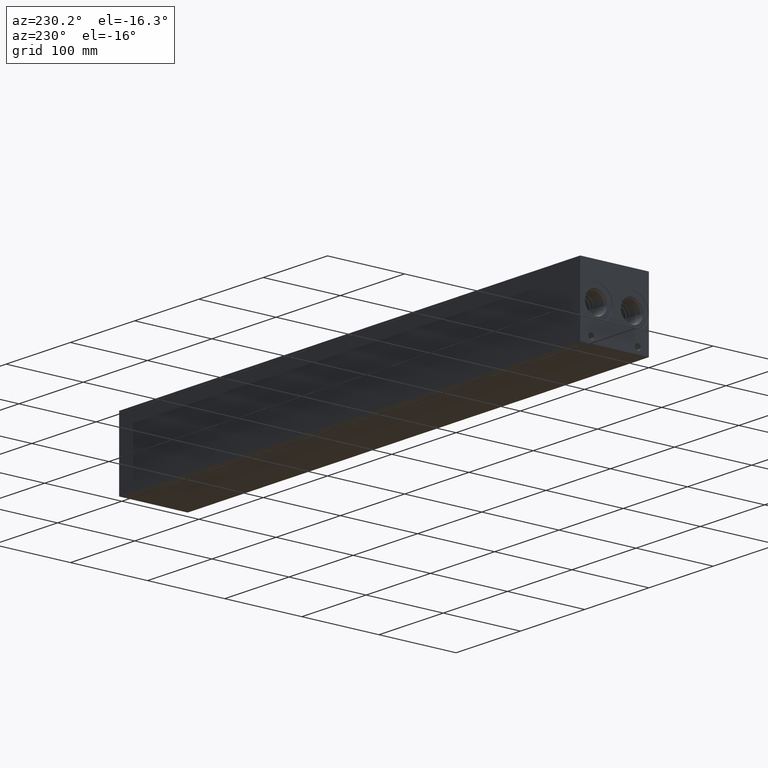
[diagram: clean part render]
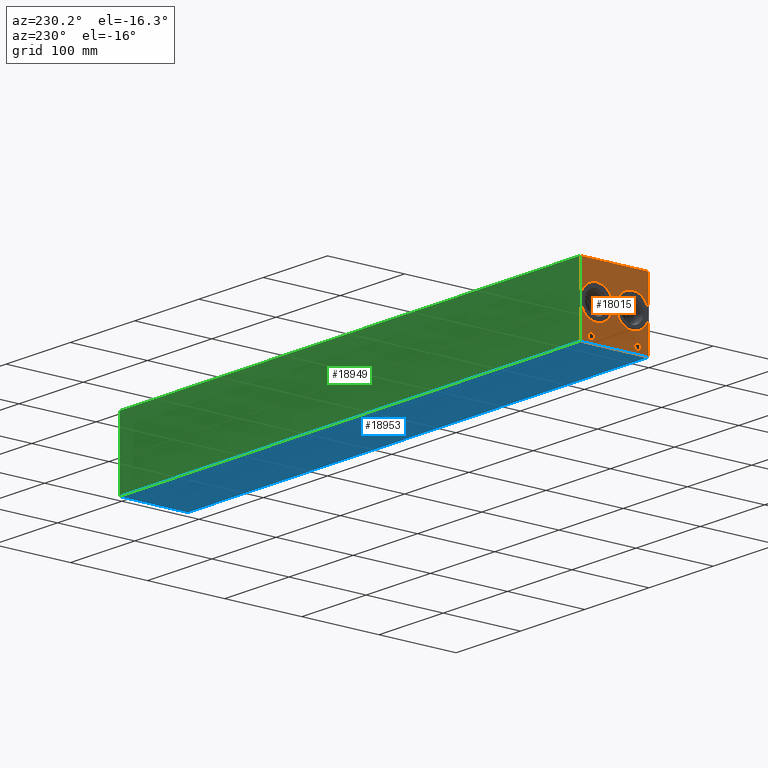
[diagram: same view with three faces highlighted in distinct colors, each labeled with its STEP entity id]
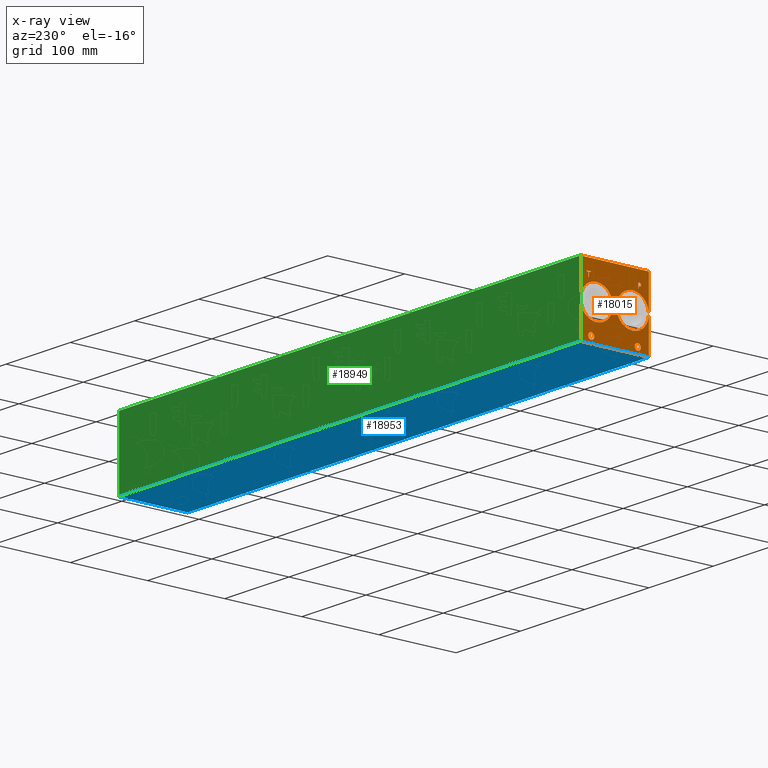
[diagram: x-ray of the same camera — body ghosted, the three highlighted faces saturated]
A machine part, auxiliary view with three faces highlighted in distinct colors.
The next image is the same camera in x-ray (body ghosted, the three faces saturated) — at least one of them is partly hidden behind the body in this view.
Their STEP definitions:

[orange] entity #18015 — the highlighted planar face has unit normal (-1, 0, 0).
#307=CIRCLE('',#19014,3.9624);
#308=CIRCLE('',#19015,3.9624);
#309=CIRCLE('',#19016,3.9624);
#310=CIRCLE('',#19017,3.9624);
#311=CIRCLE('',#19018,21.0185);
#312=CIRCLE('',#19019,21.0185);
#313=CIRCLE('',#19020,21.0185);
#314=CIRCLE('',#19021,21.0185);
#926=FACE_BOUND('',#2837,.T.);
#927=FACE_BOUND('',#2838,.T.);
#928=FACE_BOUND('',#2839,.T.);
#929=FACE_BOUND('',#2840,.T.);
#930=FACE_BOUND('',#2841,.T.);
#931=FACE_BOUND('',#2842,.T.);
#1138=B_SPLINE_CURVE_WITH_KNOTS('',2,(#25136,#25137,#25138,#25139),
 .UNSPECIFIED.,.F.,.F.,(3,1,3),(0.,1.,2.),.UNSPECIFIED.);
#1140=B_SPLINE_CURVE_WITH_KNOTS('',2,(#25157,#25158,#25159,#25160),
 .UNSPECIFIED.,.F.,.F.,(3,1,3),(0.,1.,2.),.UNSPECIFIED.);
#1142=B_SPLINE_CURVE_WITH_KNOTS('',2,(#25206,#25207,#25208,#25209),
 .UNSPECIFIED.,.F.,.F.,(3,1,3),(0.,1.,2.),.UNSPECIFIED.);
#1144=B_SPLINE_CURVE_WITH_KNOTS('',2,(#25224,#25225,#25226,#25227),
 .UNSPECIFIED.,.F.,.F.,(3,1,3),(0.,1.,2.),.UNSPECIFIED.);
#1836=FACE_OUTER_BOUND('',#2836,.T.);
#2836=EDGE_LOOP('',(#11860,#11861,#11862,#11863));
#2837=EDGE_LOOP('',(#11864,#11865,#11866,#11867,#11868,#11869,#11870,#11871));
#2838=EDGE_LOOP('',(#11872,#11873));
#2839=EDGE_LOOP('',(#11874,#11875));
#2840=EDGE_LOOP('',(#11876,#11877));
#2841=EDGE_LOOP('',(#11878,#11879));
#2842=EDGE_LOOP('',(#11880,#11881,#11882,#11883,#11884,#11885,#11886,#11887,
#11888));
#4023=LINE('',#24986,#5596);
#4027=LINE('',#24994,#5600);
#4030=LINE('',#25000,#5603);
#4033=LINE('',#25006,#5606);
#4036=LINE('',#25012,#5609);
#4039=LINE('',#25018,#5612);
#4042=LINE('',#25024,#5615);
#4045=LINE('',#25029,#5618);
#4063=LINE('',#25169,#5636);
#4066=LINE('',#25175,#5639);
#4069=LINE('',#25181,#5642);
#4072=LINE('',#25187,#5645);
#4075=LINE('',#25193,#5648);
#4079=LINE('',#25236,#5652);
#4080=LINE('',#25238,#5653);
#4081=LINE('',#25240,#5654);
#4082=LINE('',#25241,#5655);
#5596=VECTOR('',#20474,10.);
#5600=VECTOR('',#20480,10.);
#5603=VECTOR('',#20485,10.);
#5606=VECTOR('',#20490,10.);
#5609=VECTOR('',#20495,10.);
#5612=VECTOR('',#20500,10.);
#5615=VECTOR('',#20505,10.);
#5618=VECTOR('',#20510,10.);
#5636=VECTOR('',#20538,10.);
#5639=VECTOR('',#20543,10.);
#5642=VECTOR('',#20548,10.);
#5645=VECTOR('',#20553,10.);
#5648=VECTOR('',#20558,10.);
#5652=VECTOR('',#20566,10.);
#5653=VECTOR('',#20567,10.);
#5654=VECTOR('',#20568,10.);
#5655=VECTOR('',#20569,10.);
#7169=VERTEX_POINT('',#24984);
#7170=VERTEX_POINT('',#24985);
#7173=VERTEX_POINT('',#24993);
#7175=VERTEX_POINT('',#24999);
#7177=VERTEX_POINT('',#25005);
#7179=VERTEX_POINT('',#25011);
#7181=VERTEX_POINT('',#25017);
#7183=VERTEX_POINT('',#25023);
#7199=VERTEX_POINT('',#25134);
#7200=VERTEX_POINT('',#25135);
#7203=VERTEX_POINT('',#25156);
#7205=VERTEX_POINT('',#25168);
#7207=VERTEX_POINT('',#25174);
#7209=VERTEX_POINT('',#25180);
#7211=VERTEX_POINT('',#25186);
#7213=VERTEX_POINT('',#25192);
#7215=VERTEX_POINT('',#25205);
#7217=VERTEX_POINT('',#25234);
#7218=VERTEX_POINT('',#25235);
#7219=VERTEX_POINT('',#25237);
#7220=VERTEX_POINT('',#25239);
#7221=VERTEX_POINT('',#25242);
#7222=VERTEX_POINT('',#25243);
#7223=VERTEX_POINT('',#25246);
#7224=VERTEX_POINT('',#25247);
#7225=VERTEX_POINT('',#25250);
#7226=VERTEX_POINT('',#25251);
#7227=VERTEX_POINT('',#25254);
#7228=VERTEX_POINT('',#25255);
#9037=EDGE_CURVE('',#7169,#7170,#4023,.T.);
#9041=EDGE_CURVE('',#7173,#7169,#4027,.T.);
#9044=EDGE_CURVE('',#7175,#7173,#4030,.T.);
#9047=EDGE_CURVE('',#7177,#7175,#4033,.T.);
#9050=EDGE_CURVE('',#7179,#7177,#4036,.T.);
#9053=EDGE_CURVE('',#7181,#7179,#4039,.T.);
#9056=EDGE_CURVE('',#7183,#7181,#4042,.T.);
#9059=EDGE_CURVE('',#7170,#7183,#4045,.T.);
#9082=EDGE_CURVE('',#7199,#7200,#1138,.T.);
#9086=EDGE_CURVE('',#7203,#7199,#1140,.T.);
#9089=EDGE_CURVE('',#7205,#7203,#4063,.T.);
#9092=EDGE_CURVE('',#7207,#7205,#4066,.T.);
#9095=EDGE_CURVE('',#7209,#7207,#4069,.T.);
#9098=EDGE_CURVE('',#7211,#7209,#4072,.T.);
#9101=EDGE_CURVE('',#7213,#7211,#4075,.T.);
#9104=EDGE_CURVE('',#7215,#7213,#1142,.T.);
#9107=EDGE_CURVE('',#7200,#7215,#1144,.T.);
#9109=EDGE_CURVE('',#7217,#7218,#4079,.T.);
#9110=EDGE_CURVE('',#7218,#7219,#4080,.T.);
#9111=EDGE_CURVE('',#7220,#7219,#4081,.T.);
#9112=EDGE_CURVE('',#7217,#7220,#4082,.T.);
#9113=EDGE_CURVE('',#7221,#7222,#307,.T.);
#9114=EDGE_CURVE('',#7222,#7221,#308,.T.);
#9115=EDGE_CURVE('',#7223,#7224,#309,.T.);
#9116=EDGE_CURVE('',#7224,#7223,#310,.T.);
#9117=EDGE_CURVE('',#7225,#7226,#311,.T.);
#9118=EDGE_CURVE('',#7226,#7225,#312,.T.);
#9119=EDGE_CURVE('',#7227,#7228,#313,.T.);
#9120=EDGE_CURVE('',#7228,#7227,#314,.T.);
#11860=ORIENTED_EDGE('',*,*,#9109,.T.);
#11861=ORIENTED_EDGE('',*,*,#9110,.T.);
#11862=ORIENTED_EDGE('',*,*,#9111,.F.);
#11863=ORIENTED_EDGE('',*,*,#9112,.F.);
#11864=ORIENTED_EDGE('',*,*,#9037,.T.);
#11865=ORIENTED_EDGE('',*,*,#9059,.T.);
#11866=ORIENTED_EDGE('',*,*,#9056,.T.);
#11867=ORIENTED_EDGE('',*,*,#9053,.T.);
#11868=ORIENTED_EDGE('',*,*,#9050,.T.);
#11869=ORIENTED_EDGE('',*,*,#9047,.T.);
#11870=ORIENTED_EDGE('',*,*,#9044,.T.);
#11871=ORIENTED_EDGE('',*,*,#9041,.T.);
#11872=ORIENTED_EDGE('',*,*,#9113,.T.);
#11873=ORIENTED_EDGE('',*,*,#9114,.T.);
#11874=ORIENTED_EDGE('',*,*,#9115,.T.);
#11875=ORIENTED_EDGE('',*,*,#9116,.T.);
#11876=ORIENTED_EDGE('',*,*,#9117,.T.);
#11877=ORIENTED_EDGE('',*,*,#9118,.T.);
#11878=ORIENTED_EDGE('',*,*,#9119,.T.);
#11879=ORIENTED_EDGE('',*,*,#9120,.T.);
#11880=ORIENTED_EDGE('',*,*,#9082,.T.);
#11881=ORIENTED_EDGE('',*,*,#9107,.T.);
#11882=ORIENTED_EDGE('',*,*,#9104,.T.);
#11883=ORIENTED_EDGE('',*,*,#9101,.T.);
#11884=ORIENTED_EDGE('',*,*,#9098,.T.);
#11885=ORIENTED_EDGE('',*,*,#9095,.T.);
#11886=ORIENTED_EDGE('',*,*,#9092,.T.);
#11887=ORIENTED_EDGE('',*,*,#9089,.T.);
#11888=ORIENTED_EDGE('',*,*,#9086,.T.);
#16904=PLANE('',#19013);
#18015=ADVANCED_FACE('',(#1836,#926,#927,#928,#929,#930,#931),#16904,.T.);
#19013=AXIS2_PLACEMENT_3D('',#25233,#20564,#20565);
#19014=AXIS2_PLACEMENT_3D('',#25244,#20570,#20571);
#19015=AXIS2_PLACEMENT_3D('',#25245,#20572,#20573);
#19016=AXIS2_PLACEMENT_3D('',#25248,#20574,#20575);
#19017=AXIS2_PLACEMENT_3D('',#25249,#20576,#20577);
#19018=AXIS2_PLACEMENT_3D('',#25252,#20578,#20579);
#19019=AXIS2_PLACEMENT_3D('',#25253,#20580,#20581);
#19020=AXIS2_PLACEMENT_3D('',#25256,#20582,#20583);
#19021=AXIS2_PLACEMENT_3D('',#25257,#20584,#20585);
#20474=DIRECTION('',(0.,1.,1.0524411238433E-14));
#20480=DIRECTION('',(0.,3.17280044688051E-15,-1.));
#20485=DIRECTION('',(0.,1.,4.16909044227778E-15));
#20490=DIRECTION('',(0.,0.,-1.));
#20495=DIRECTION('',(0.,-1.,-3.47984565141734E-15));
#20500=DIRECTION('',(0.,0.,1.));
#20505=DIRECTION('',(0.,1.,0.));
#20510=DIRECTION('',(0.,-3.17280044688052E-15,1.));
#20538=DIRECTION('',(0.,-1.,-5.56775304226775E-15));
#20543=DIRECTION('',(0.,-3.14708893596576E-15,1.));
#20548=DIRECTION('',(0.,1.,1.0524411238433E-14));
#20553=DIRECTION('',(0.,2.8141360485375E-15,-1.));
#20558=DIRECTION('',(0.,1.,0.));
#20564=DIRECTION('center_axis',(-1.,0.,0.));
#20565=DIRECTION('ref_axis',(0.,-1.,0.));
#20566=DIRECTION('',(0.,-1.,0.));
#20567=DIRECTION('',(0.,0.,1.));
#20568=DIRECTION('',(0.,-1.,0.));
#20569=DIRECTION('',(0.,0.,1.));
#20570=DIRECTION('center_axis',(1.,0.,0.));
#20571=DIRECTION('ref_axis',(0.,1.,0.));
#20572=DIRECTION('center_axis',(1.,0.,0.));
#20573=DIRECTION('ref_axis',(0.,1.,0.));
#20574=DIRECTION('center_axis',(1.,0.,0.));
#20575=DIRECTION('ref_axis',(0.,1.,0.));
#20576=DIRECTION('center_axis',(1.,0.,0.));
#20577=DIRECTION('ref_axis',(0.,1.,0.));
#20578=DIRECTION('center_axis',(1.,0.,0.));
#20579=DIRECTION('ref_axis',(0.,0.,1.));
#20580=DIRECTION('center_axis',(1.,0.,0.));
#20581=DIRECTION('ref_axis',(0.,0.,1.));
#20582=DIRECTION('center_axis',(1.,0.,0.));
#20583=DIRECTION('ref_axis',(0.,0.,1.));
#20584=DIRECTION('center_axis',(1.,0.,0.));
#20585=DIRECTION('ref_axis',(0.,0.,1.));
#24984=CARTESIAN_POINT('',(0.,77.548834728547,68.58));
#24985=CARTESIAN_POINT('',(0.,78.3927569200865,68.58));
#24986=CARTESIAN_POINT('',(0.,83.2244173642732,68.58));
#24993=CARTESIAN_POINT('',(0.,77.548834728547,74.1787033194815));
#24994=CARTESIAN_POINT('',(0.,77.5488347285471,37.0893516597408));
#24999=CARTESIAN_POINT('',(0.,75.4184457816119,74.1787033194815));
#25000=CARTESIAN_POINT('',(0.,82.1592228908058,74.1787033194816));
#25005=CARTESIAN_POINT('',(0.,75.4184457816119,74.9299999046326));
#25006=CARTESIAN_POINT('',(0.,75.4184457816119,37.4649999523163));
#25011=CARTESIAN_POINT('',(0.,80.5231458670216,74.9299999046326));
#25012=CARTESIAN_POINT('',(0.,84.7115729335107,74.9299999046326));
#25017=CARTESIAN_POINT('',(0.,80.5231458670216,74.1787033194815));
#25018=CARTESIAN_POINT('',(0.,80.5231458670216,37.0893516597408));
#25023=CARTESIAN_POINT('',(0.,78.3927569200865,74.1787033194815));
#25024=CARTESIAN_POINT('',(0.,83.6463784600433,74.1787033194815));
#25029=CARTESIAN_POINT('',(0.,78.3927569200866,34.29));
#25134=CARTESIAN_POINT('',(0.,10.8314327976406,74.5337681439707));
#25135=CARTESIAN_POINT('',(0.,10.074990345468,73.0157373726039));
#25136=CARTESIAN_POINT('Ctrl Pts',(0.,10.8314327976406,74.5337681439707));
#25137=CARTESIAN_POINT('Ctrl Pts',(0.,10.4763679731514,74.2919123939564));
#25138=CARTESIAN_POINT('Ctrl Pts',(0.,10.074990345468,73.5457616758269));
#25139=CARTESIAN_POINT('Ctrl Pts',(0.,10.074990345468,73.0157373726039));
#25156=CARTESIAN_POINT('',(0.,12.4935478456117,74.9299999046326));
#25157=CARTESIAN_POINT('Ctrl Pts',(0.,12.4935478456117,74.9299999046326));
#25158=CARTESIAN_POINT('Ctrl Pts',(0.,11.9275024732376,74.9299999046326));
#25159=CARTESIAN_POINT('Ctrl Pts',(0.,11.1350389519139,74.7447486918556));
#25160=CARTESIAN_POINT('Ctrl Pts',(0.,10.8314327976406,74.5337681439707));
#25168=CARTESIAN_POINT('',(0.,14.0887666223022,74.9299999046326));
#25169=CARTESIAN_POINT('',(0.,51.4943833111509,74.9299999046328));
#25174=CARTESIAN_POINT('',(0.,14.0887666223022,68.58));
#25175=CARTESIAN_POINT('',(0.,14.0887666223023,34.2899999999999));
#25180=CARTESIAN_POINT('',(0.,13.2448444307627,68.58));
#25181=CARTESIAN_POINT('',(0.,51.072422215381,68.5800000000004));
#25186=CARTESIAN_POINT('',(0.,13.2448444307627,70.9470988299279));
#25187=CARTESIAN_POINT('',(0.,13.2448444307628,35.4735494149638));
#25192=CARTESIAN_POINT('',(0.,12.5295689147628,70.9470988299279));
#25193=CARTESIAN_POINT('',(0.,50.7147844573814,70.9470988299279));
#25205=CARTESIAN_POINT('',(0.,10.6307439837989,71.6057698086904));
#25206=CARTESIAN_POINT('Ctrl Pts',(0.,10.6307439837989,71.6057698086904));
#25207=CARTESIAN_POINT('Ctrl Pts',(0.,10.9600794731802,71.2815801863307));
#25208=CARTESIAN_POINT('Ctrl Pts',(0.,11.8503144679139,70.9470988299279));
#25209=CARTESIAN_POINT('Ctrl Pts',(0.,12.5295689147628,70.9470988299279));
#25224=CARTESIAN_POINT('Ctrl Pts',(0.,10.074990345468,73.0157373726039));
#25225=CARTESIAN_POINT('Ctrl Pts',(0.,10.074990345468,72.6040680108774));
#25226=CARTESIAN_POINT('Ctrl Pts',(0.,10.3683047656982,71.8630631597695));
#25227=CARTESIAN_POINT('Ctrl Pts',(0.,10.6307439837989,71.6057698086904));
#25233=CARTESIAN_POINT('Origin',(0.,88.9,0.));
#25234=CARTESIAN_POINT('',(0.,88.9,0.));
#25235=CARTESIAN_POINT('',(0.,0.,0.));
#25236=CARTESIAN_POINT('',(0.,88.9,0.));
#25237=CARTESIAN_POINT('',(0.,0.,88.9));
#25238=CARTESIAN_POINT('',(0.,0.,0.));
#25239=CARTESIAN_POINT('',(0.,88.9,88.9));
#25240=CARTESIAN_POINT('',(0.,88.9,88.9));
#25241=CARTESIAN_POINT('',(0.,88.9,0.));
#25242=CARTESIAN_POINT('',(0.,18.2372,7.92479999999999));
#25243=CARTESIAN_POINT('',(0.,10.3124,7.92479999999999));
#25244=CARTESIAN_POINT('Origin',(0.,14.2748,7.92479999999999));
#25245=CARTESIAN_POINT('Origin',(0.,14.2748,7.92479999999999));
#25246=CARTESIAN_POINT('',(0.,78.5876,7.92479999999999));
#25247=CARTESIAN_POINT('',(0.,70.6628,7.92479999999999));
#25248=CARTESIAN_POINT('Origin',(0.,74.6252,7.92479999999999));
#25249=CARTESIAN_POINT('Origin',(0.,74.6252,7.92479999999999));
#25250=CARTESIAN_POINT('',(0.,21.082,65.4685));
#25251=CARTESIAN_POINT('',(0.,21.082,23.4315));
#25252=CARTESIAN_POINT('Origin',(0.,21.082,44.45));
#25253=CARTESIAN_POINT('Origin',(0.,21.082,44.45));
#25254=CARTESIAN_POINT('',(0.,67.818,65.4685));
#25255=CARTESIAN_POINT('',(0.,67.818,23.4315));
#25256=CARTESIAN_POINT('Origin',(0.,67.818,44.45));
#25257=CARTESIAN_POINT('Origin',(0.,67.818,44.45));

[blue] entity #18953 — the highlighted planar face has unit normal (0, 0, 1).
#2774=FACE_OUTER_BOUND('',#3962,.T.);
#3962=EDGE_LOOP('',(#16863,#16864,#16865,#16866));
#4019=LINE('',#24961,#5592);
#4079=LINE('',#25236,#5652);
#4340=LINE('',#27499,#5913);
#5534=LINE('',#33075,#7107);
#5592=VECTOR('',#20452,10.);
#5652=VECTOR('',#20566,10.);
#5913=VECTOR('',#20967,10.);
#7107=VECTOR('',#24697,10.);
#7157=VERTEX_POINT('',#24959);
#7158=VERTEX_POINT('',#24960);
#7217=VERTEX_POINT('',#25234);
#7218=VERTEX_POINT('',#25235);
#9025=EDGE_CURVE('',#7157,#7158,#4019,.T.);
#9109=EDGE_CURVE('',#7217,#7218,#4079,.T.);
#9580=EDGE_CURVE('',#7218,#7157,#4340,.T.);
#11589=EDGE_CURVE('',#7158,#7217,#5534,.T.);
#16863=ORIENTED_EDGE('',*,*,#9580,.F.);
#16864=ORIENTED_EDGE('',*,*,#9109,.F.);
#16865=ORIENTED_EDGE('',*,*,#11589,.F.);
#16866=ORIENTED_EDGE('',*,*,#9025,.F.);
#17350=PLANE('',#20355);
#18953=ADVANCED_FACE('',(#2774),#17350,.F.);
#20355=AXIS2_PLACEMENT_3D('',#33080,#24705,#24706);
#20452=DIRECTION('',(0.,1.,0.));
#20566=DIRECTION('',(0.,-1.,0.));
#20967=DIRECTION('',(1.,0.,0.));
#24697=DIRECTION('',(-1.,0.,0.));
#24705=DIRECTION('center_axis',(0.,0.,1.));
#24706=DIRECTION('ref_axis',(1.,0.,0.));
#24959=CARTESIAN_POINT('',(717.55,0.,0.));
#24960=CARTESIAN_POINT('',(717.55,88.9,0.));
#24961=CARTESIAN_POINT('',(717.55,0.,0.));
#25234=CARTESIAN_POINT('',(0.,88.9,0.));
#25235=CARTESIAN_POINT('',(0.,0.,0.));
#25236=CARTESIAN_POINT('',(0.,88.9,0.));
#27499=CARTESIAN_POINT('',(0.,0.,0.));
#33075=CARTESIAN_POINT('',(717.55,88.9,0.));
#33080=CARTESIAN_POINT('Origin',(358.775,44.45,0.));

[green] entity #18949 — the highlighted planar face has unit normal (0, 1, 0).
#2770=FACE_OUTER_BOUND('',#3910,.T.);
#3910=EDGE_LOOP('',(#16749,#16750,#16751,#16752));
#4020=LINE('',#24963,#5593);
#4082=LINE('',#25241,#5655);
#5534=LINE('',#33075,#7107);
#5535=LINE('',#33076,#7108);
#5593=VECTOR('',#20453,10.);
#5655=VECTOR('',#20569,10.);
#7107=VECTOR('',#24697,10.);
#7108=VECTOR('',#24698,10.);
#7158=VERTEX_POINT('',#24960);
#7159=VERTEX_POINT('',#24962);
#7217=VERTEX_POINT('',#25234);
#7220=VERTEX_POINT('',#25239);
#9026=EDGE_CURVE('',#7158,#7159,#4020,.T.);
#9112=EDGE_CURVE('',#7217,#7220,#4082,.T.);
#11589=EDGE_CURVE('',#7158,#7217,#5534,.T.);
#11590=EDGE_CURVE('',#7159,#7220,#5535,.T.);
#16749=ORIENTED_EDGE('',*,*,#11589,.T.);
#16750=ORIENTED_EDGE('',*,*,#9112,.T.);
#16751=ORIENTED_EDGE('',*,*,#11590,.F.);
#16752=ORIENTED_EDGE('',*,*,#9026,.F.);
#17346=PLANE('',#20351);
#18949=ADVANCED_FACE('',(#2770),#17346,.T.);
#20351=AXIS2_PLACEMENT_3D('',#33074,#24695,#24696);
#20453=DIRECTION('',(0.,0.,1.));
#20569=DIRECTION('',(0.,0.,1.));
#24695=DIRECTION('center_axis',(0.,1.,0.));
#24696=DIRECTION('ref_axis',(-1.,0.,0.));
#24697=DIRECTION('',(-1.,0.,0.));
#24698=DIRECTION('',(-1.,0.,0.));
#24960=CARTESIAN_POINT('',(717.55,88.9,0.));
#24962=CARTESIAN_POINT('',(717.55,88.9,88.9));
#24963=CARTESIAN_POINT('',(717.55,88.9,0.));
#25234=CARTESIAN_POINT('',(0.,88.9,0.));
#25239=CARTESIAN_POINT('',(0.,88.9,88.9));
#25241=CARTESIAN_POINT('',(0.,88.9,0.));
#33074=CARTESIAN_POINT('Origin',(717.55,88.9,0.));
#33075=CARTESIAN_POINT('',(717.55,88.9,0.));
#33076=CARTESIAN_POINT('',(717.55,88.9,88.9));